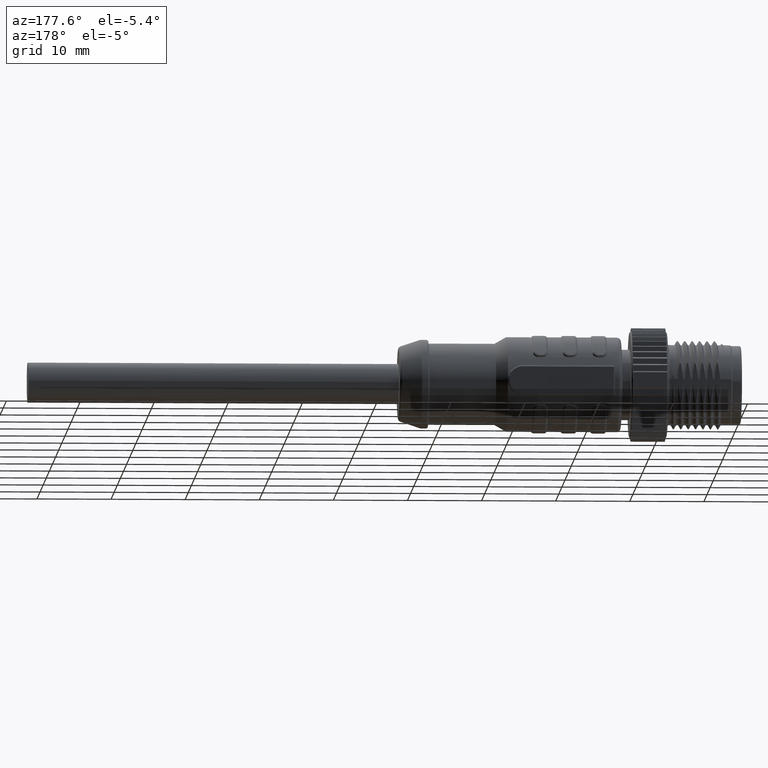
[diagram: clean part render]
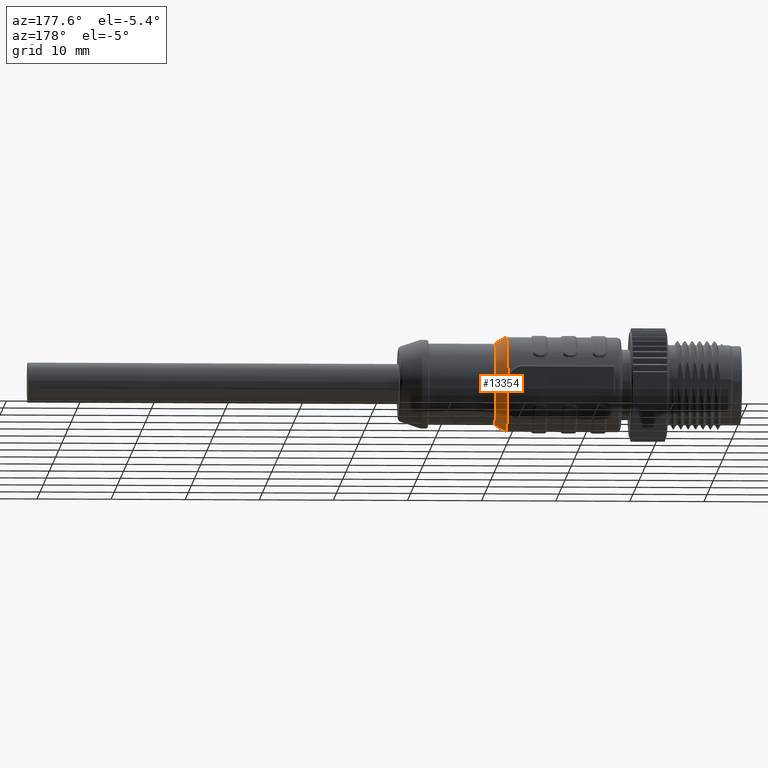
[diagram: same view with one face highlighted and labeled with its STEP entity id]
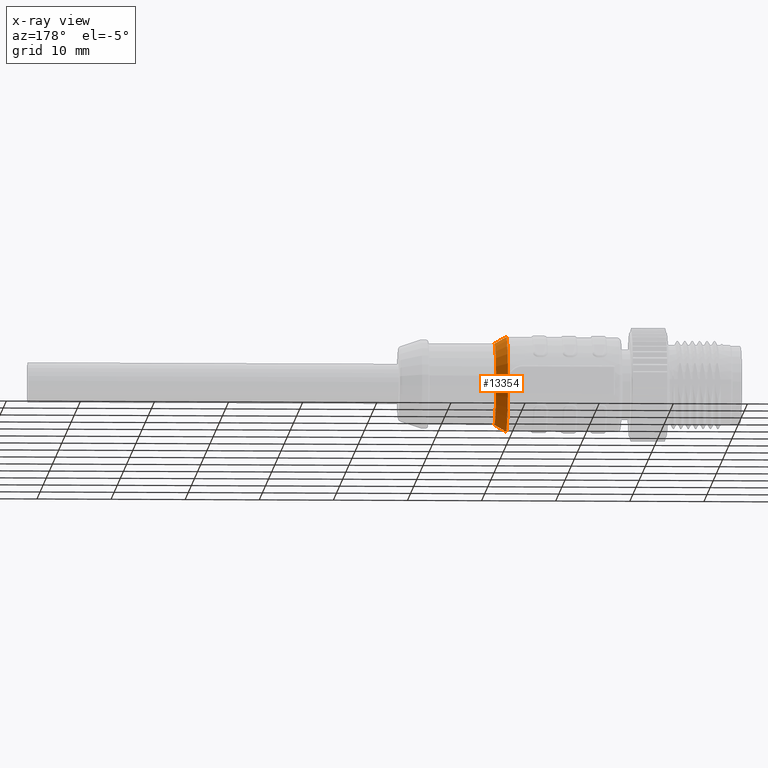
[diagram: x-ray of the same camera — body ghosted, the highlighted face saturated]
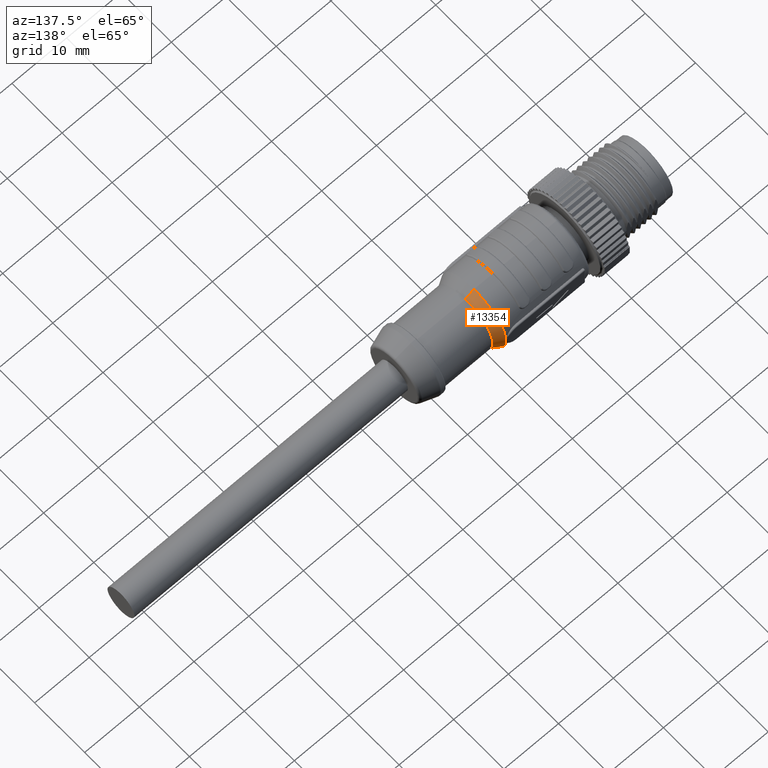
[diagram: same view with one face highlighted and labeled with its STEP entity id]
A machine part, auxiliary view. The second image highlights one B-rep face of the part: STEP entity #13354.
The next image is the same camera in x-ray: the body ghosted, the highlighted face saturated — about 0% of this face is hidden behind the body in this view.
A second angle (auxiliary view) of the same face is appended — the face is thin or edge-on in the first view.
In plain terms, the highlighted conical surface has half-angle 30 deg.
Its self-contained STEP definition (entity closure, byte-faithful):
#657=CARTESIAN_POINT('',(2.964115427319E1,0.E0,0.E0));
#658=DIRECTION('',(-1.E0,0.E0,0.E0));
#659=DIRECTION('',(0.E0,0.E0,1.E0));
#660=AXIS2_PLACEMENT_3D('',#657,#658,#659);
#662=DIRECTION('',(8.660254037843E-1,0.E0,5.000000000002E-1));
#663=VECTOR('',#662,1.799999999998E0);
#664=CARTESIAN_POINT('',(2.964115427319E1,0.E0,-6.399999999999E0));
#665=LINE('',#664,#663);
#666=CARTESIAN_POINT('',(3.12E1,0.E0,0.E0));
#667=DIRECTION('',(1.E0,0.E0,0.E0));
#668=DIRECTION('',(0.E0,0.E0,-1.E0));
#669=AXIS2_PLACEMENT_3D('',#666,#667,#668);
#671=DIRECTION('',(-8.660254037843E-1,0.E0,5.000000000002E-1));
#672=VECTOR('',#671,1.799999999998E0);
#673=CARTESIAN_POINT('',(3.12E1,0.E0,5.499999999999E0));
#674=LINE('',#673,#672);
#10543=CARTESIAN_POINT('',(2.964115427319E1,0.E0,-6.399999999997E0));
#10544=CARTESIAN_POINT('',(2.964115427319E1,0.E0,6.399999999997E0));
#10545=VERTEX_POINT('',#10543);
#10546=VERTEX_POINT('',#10544);
#10615=CARTESIAN_POINT('',(3.12E1,0.E0,5.499999999999E0));
#10616=VERTEX_POINT('',#10615);
#10617=CARTESIAN_POINT('',(3.12E1,0.E0,-5.499999999998E0));
#10618=VERTEX_POINT('',#10617);
#13341=CARTESIAN_POINT('',(3.042057713659E1,0.E0,0.E0));
#13342=DIRECTION('',(-1.E0,0.E0,0.E0));
#13343=DIRECTION('',(0.E0,0.E0,1.E0));
#13344=AXIS2_PLACEMENT_3D('',#13341,#13342,#13343);
#13345=CONICAL_SURFACE('',#13344,5.949999999998E0,3.E1);
#13347=ORIENTED_EDGE('',*,*,#13346,.T.);
#13348=ORIENTED_EDGE('',*,*,#13336,.T.);
#13350=ORIENTED_EDGE('',*,*,#13349,.T.);
#13351=ORIENTED_EDGE('',*,*,#13332,.T.);
#13352=EDGE_LOOP('',(#13347,#13348,#13350,#13351));
#13353=FACE_OUTER_BOUND('',#13352,.F.);
#13354=ADVANCED_FACE('',(#13353),#13345,.T.);
#661=CIRCLE('',#660,6.399999999997E0);
#670=CIRCLE('',#669,5.499999999998E0);
#13332=EDGE_CURVE('',#10616,#10546,#674,.T.);
#13336=EDGE_CURVE('',#10545,#10618,#665,.T.);
#13346=EDGE_CURVE('',#10546,#10545,#661,.T.);
#13349=EDGE_CURVE('',#10618,#10616,#670,.T.);